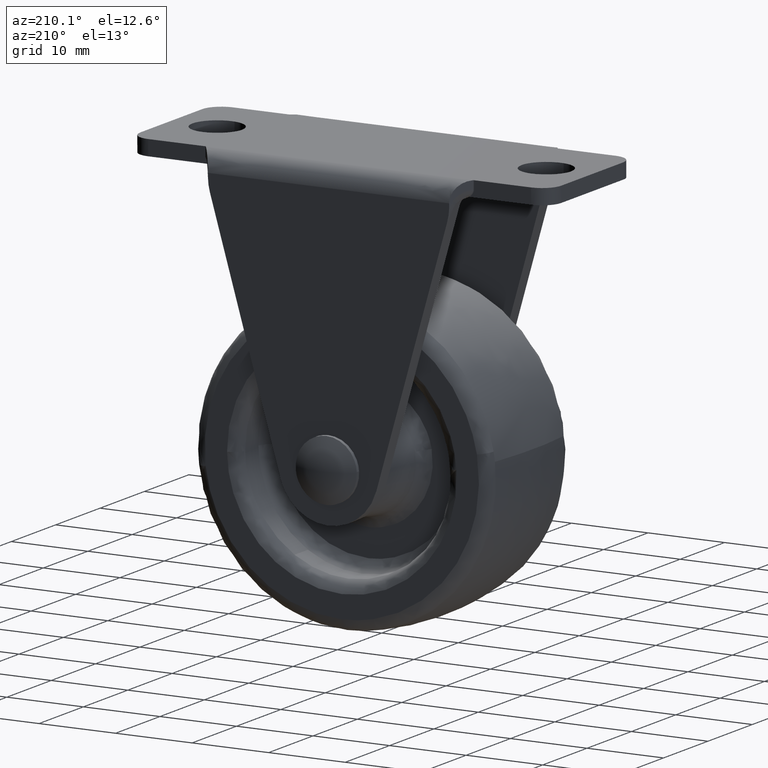
[diagram: clean part render]
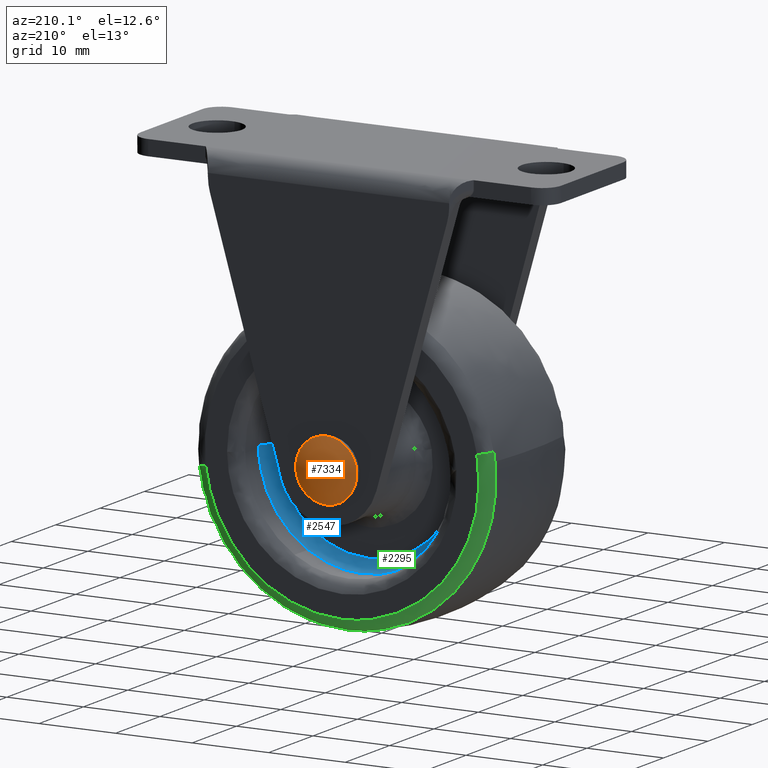
[diagram: same view with three faces highlighted in distinct colors, each labeled with its STEP entity id]
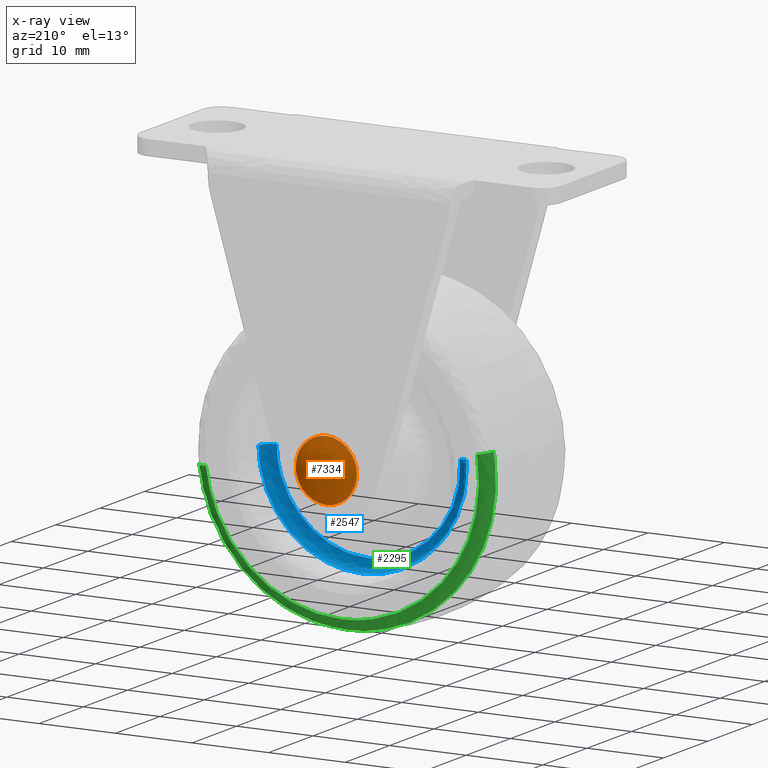
[diagram: x-ray of the same camera — body ghosted, the three highlighted faces saturated]
A machine part, auxiliary view with three faces highlighted in distinct colors.
The next image is the same camera in x-ray (body ghosted, the three faces saturated) — at least one of them is partly hidden behind the body in this view.
Their STEP definitions:

[orange] entity #7334 — the highlighted face is a freeform B-spline surface patch.
#7123=CARTESIAN_POINT('',(3.972038111704775,12.499999995521700,-35.472136939399327));
#7124=VERTEX_POINT('',#7123);
#7130=CARTESIAN_POINT('',(0.0,12.499999995521700,-30.999999991603168));
#7131=VERTEX_POINT('',#7130);
#7132=CARTESIAN_POINT('',(3.972038111704776,12.499999995521700,-35.472136939399334));
#7133=CARTESIAN_POINT('',(4.000000008396834,12.499999995521701,-35.236896479134217));
#7134=CARTESIAN_POINT('',(4.000000008396835,12.499999995521700,-35.0));
#7135=CARTESIAN_POINT('',(4.000000008396834,12.499999995521701,-30.999999991603158));
#7136=CARTESIAN_POINT('',(0.0,12.499999995521700,-30.999999991603168));
#7144=(BOUNDED_CURVE()B_SPLINE_CURVE(2,(#7132,#7133,#7134,#7135,#7136),.UNSPECIFIED.,.F.,.U.)B_SPLINE_CURVE_WITH_KNOTS((3,2,3),(0.229562473513178,0.250000000000000,0.500000000000000),.UNSPECIFIED.)CURVE()GEOMETRIC_REPRESENTATION_ITEM()RATIONAL_B_SPLINE_CURVE((0.956026754183052,0.976055948330758,1.0,0.707106781186548,1.0))REPRESENTATION_ITEM(''));
#7145=EDGE_CURVE('',#7124,#7131,#7144,.T.);
#7147=CARTESIAN_POINT('',(-3.992539199969162,12.499999995521700,-34.755805841408481));
#7148=VERTEX_POINT('',#7147);
#7149=CARTESIAN_POINT('',(0.0,12.499999995521700,-30.999999991603168));
#7150=CARTESIAN_POINT('',(-3.762824275394021,12.499999995521703,-30.999999991603165));
#7151=CARTESIAN_POINT('',(-3.992539199969162,12.499999995521700,-34.755805841408481));
#7159=(BOUNDED_CURVE()B_SPLINE_CURVE(2,(#7149,#7150,#7151),.UNSPECIFIED.,.F.,.U.)B_SPLINE_CURVE_WITH_KNOTS((3,3),(0.500000000000000,0.739332962236123),.UNSPECIFIED.)CURVE()GEOMETRIC_REPRESENTATION_ITEM()RATIONAL_B_SPLINE_CURVE((1.0,0.719603993290014,0.976072041660674))REPRESENTATION_ITEM(''));
#7160=EDGE_CURVE('',#7131,#7148,#7159,.T.);
#7234=CARTESIAN_POINT('',(0.0,12.499999995521700,-39.000000008396839));
#7235=VERTEX_POINT('',#7234);
#7236=CARTESIAN_POINT('',(-3.992539199969162,12.499999995521698,-34.755805841408488));
#7237=CARTESIAN_POINT('',(-4.000000008396836,12.499999995521701,-34.877788946481274));
#7238=CARTESIAN_POINT('',(-4.000000008396835,12.499999995521700,-35.0));
#7239=CARTESIAN_POINT('',(-4.000000008396834,12.499999995521701,-39.000000008396846));
#7240=CARTESIAN_POINT('',(0.0,12.499999995521700,-39.000000008396839));
#7248=(BOUNDED_CURVE()B_SPLINE_CURVE(2,(#7236,#7237,#7238,#7239,#7240),.UNSPECIFIED.,.F.,.U.)B_SPLINE_CURVE_WITH_KNOTS((3,2,3),(0.739332962236123,0.750000000000000,1.0),.UNSPECIFIED.)CURVE()GEOMETRIC_REPRESENTATION_ITEM()RATIONAL_B_SPLINE_CURVE((0.976072041660673,0.987502787896533,1.0,0.707106781186548,1.0))REPRESENTATION_ITEM(''));
#7249=EDGE_CURVE('',#7148,#7235,#7248,.T.);
#7251=CARTESIAN_POINT('',(0.0,12.499999995521700,-39.000000008396839));
#7252=CARTESIAN_POINT('',(3.552698111211124,12.499999995521701,-39.000000008396839));
#7253=CARTESIAN_POINT('',(3.972038111704775,12.499999995521698,-35.472136939399341));
#7261=(BOUNDED_CURVE()B_SPLINE_CURVE(2,(#7251,#7252,#7253),.UNSPECIFIED.,.F.,.U.)B_SPLINE_CURVE_WITH_KNOTS((3,3),(0.0,0.229562473513178),.UNSPECIFIED.)CURVE()GEOMETRIC_REPRESENTATION_ITEM()RATIONAL_B_SPLINE_CURVE((1.0,0.731050832855789,0.956026754183053))REPRESENTATION_ITEM(''));
#7262=EDGE_CURVE('',#7235,#7124,#7261,.T.);
#7304=CARTESIAN_POINT('',(-4.060453221722129,11.266953755104980,-30.939456900169390));
#7305=CARTESIAN_POINT('',(-2.172937257303670,12.304966706518959,-30.654029289485536));
#7306=CARTESIAN_POINT('',(2.172949429898298,12.304966706518959,-30.654029289485536));
#7307=CARTESIAN_POINT('',(4.060472980197424,11.266942889173379,-30.939459888028964));
#7308=CARTESIAN_POINT('',(-4.345888038590006,12.305015890197657,-32.827007882601769));
#7309=CARTESIAN_POINT('',(-2.337235760131406,13.500000000000000,-32.662712505168628));
#7310=CARTESIAN_POINT('',(2.337248853111133,13.500000000000000,-32.662712505168628));
#7311=CARTESIAN_POINT('',(4.345908961216626,12.305003442902473,-32.827009593949242));
#7312=CARTESIAN_POINT('',(-4.345888038590006,12.305015890197657,-37.172992037315133));
#7313=CARTESIAN_POINT('',(-2.337235760131406,13.500000000000000,-37.337287408693342));
#7314=CARTESIAN_POINT('',(2.337248853111133,13.500000000000000,-37.337287408693342));
#7315=CARTESIAN_POINT('',(4.345908961216626,12.305003442902473,-37.172990325967703));
#7316=CARTESIAN_POINT('',(-4.060453241379059,11.266953826592809,-39.060542969841322));
#7317=CARTESIAN_POINT('',(-2.172937268562442,12.304966788410191,-39.345970572866754));
#7318=CARTESIAN_POINT('',(2.172949441157133,12.304966788410191,-39.345970572866754));
#7319=CARTESIAN_POINT('',(4.060472999854436,11.266942960661101,-39.060539981981890));
#7327=(BOUNDED_SURFACE()B_SPLINE_SURFACE(2,2,((#7304,#7308,#7312,#7316),(#7305,#7309,#7313,#7317),(#7306,#7310,#7314,#7318),(#7307,#7311,#7315,#7319)),.UNSPECIFIED.,.F.,.F.,.U.)B_SPLINE_SURFACE_WITH_KNOTS((3,1,3),(3,1,3),(0.0,4.504191519475756,9.008408271018071),(0.0,4.504291219728851,9.008582273457266),.UNSPECIFIED.)GEOMETRIC_REPRESENTATION_ITEM()RATIONAL_B_SPLINE_SURFACE(((1.151219153383144,1.075607903092554,1.075607903092554,1.151219147810014),(1.075611250290590,1.0,1.0,1.075611244717460),(1.075611250290590,1.0,1.0,1.075611244717460),(1.151220000482552,1.075608750191963,1.075608750191963,1.151219994909422)))REPRESENTATION_ITEM('')SURFACE());
#7328=ORIENTED_EDGE('',*,*,#7249,.F.);
#7329=ORIENTED_EDGE('',*,*,#7160,.F.);
#7330=ORIENTED_EDGE('',*,*,#7145,.F.);
#7331=ORIENTED_EDGE('',*,*,#7262,.F.);
#7332=EDGE_LOOP('',(#7328,#7329,#7330,#7331));
#7333=FACE_OUTER_BOUND('',#7332,.T.);
#7334=ADVANCED_FACE('',(#7333),#7327,.T.);

[blue] entity #2547 — the highlighted face is a freeform B-spline surface patch.
#581=CARTESIAN_POINT('',(7.043325705368315,4.499999999998531,-46.517011895800991));
#582=VERTEX_POINT('',#581);
#588=CARTESIAN_POINT('',(13.498934096751150,4.499999999990124,-35.169641538454272));
#589=VERTEX_POINT('',#588);
#590=CARTESIAN_POINT('',(7.043325705368316,4.499999999998532,-46.517011895800991));
#591=CARTESIAN_POINT('',(13.405225547462868,4.499999999995649,-42.626338420918927));
#592=CARTESIAN_POINT('',(13.498934096751157,4.499999999990124,-35.169641538454272));
#600=(BOUNDED_CURVE()B_SPLINE_CURVE(2,(#590,#591,#592),.UNSPECIFIED.,.F.,.U.)B_SPLINE_CURVE_WITH_KNOTS((3,3),(0.089144100680157,0.247784295920972),.UNSPECIFIED.)CURVE()GEOMETRIC_REPRESENTATION_ITEM()RATIONAL_B_SPLINE_CURVE((0.865603209903497,0.812290206346157,0.994854295642273))REPRESENTATION_ITEM(''));
#601=EDGE_CURVE('',#582,#589,#600,.T.);
#620=CARTESIAN_POINT('',(-13.467136596845579,4.499999999988322,-34.058601103727838));
#621=VERTEX_POINT('',#620);
#635=CARTESIAN_POINT('',(-10.110903229327260,4.500000000000000,-43.945369522114632));
#636=VERTEX_POINT('',#635);
#637=CARTESIAN_POINT('',(-13.467136596845576,4.499999999988322,-34.058601103727845));
#638=CARTESIAN_POINT('',(-13.499999999999995,4.500000000000000,-34.528726935687693));
#639=CARTESIAN_POINT('',(-13.500000000000000,4.500000000000000,-35.0));
#640=CARTESIAN_POINT('',(-13.499999999999998,4.499999999999999,-40.114691605637006));
#641=CARTESIAN_POINT('',(-10.110903229327331,4.500000000000000,-43.945369522114675));
#649=(BOUNDED_CURVE()B_SPLINE_CURVE(2,(#637,#638,#639,#640,#641),.UNSPECIFIED.,.F.,.U.)B_SPLINE_CURVE_WITH_KNOTS((3,2,3),(0.737833686535040,0.750000000000000,0.865779871198424),.UNSPECIFIED.)CURVE()GEOMETRIC_REPRESENTATION_ITEM()RATIONAL_B_SPLINE_CURVE((0.972879876386867,0.985746277152618,1.0,0.864355443403547,0.854350161139131))REPRESENTATION_ITEM(''));
#650=EDGE_CURVE('',#621,#636,#649,.T.);
#752=CARTESIAN_POINT('',(0.0,4.500000000000000,-48.500000000000000));
#753=VERTEX_POINT('',#752);
#754=CARTESIAN_POINT('',(-10.110903229327331,4.500000000000000,-43.945369522114675));
#755=CARTESIAN_POINT('',(-6.081307481324056,4.500000000000000,-48.500000000000000));
#756=CARTESIAN_POINT('',(0.0,4.500000000000000,-48.500000000000000));
#764=(BOUNDED_CURVE()B_SPLINE_CURVE(2,(#754,#755,#756),.UNSPECIFIED.,.F.,.U.)B_SPLINE_CURVE_WITH_KNOTS((3,3),(0.865779871198424,1.0),.UNSPECIFIED.)CURVE()GEOMETRIC_REPRESENTATION_ITEM()RATIONAL_B_SPLINE_CURVE((0.854350161139131,0.842751337783001,1.0))REPRESENTATION_ITEM(''));
#765=EDGE_CURVE('',#636,#753,#764,.T.);
#767=CARTESIAN_POINT('',(0.0,4.500000000000000,-48.500000000000000));
#768=CARTESIAN_POINT('',(3.800809521876256,4.500000000000000,-48.500000000000000));
#769=CARTESIAN_POINT('',(7.043325705368316,4.499999999998532,-46.517011895800991));
#777=(BOUNDED_CURVE()B_SPLINE_CURVE(2,(#767,#768,#769),.UNSPECIFIED.,.F.,.U.)B_SPLINE_CURVE_WITH_KNOTS((3,3),(0.0,0.089144100680157),.UNSPECIFIED.)CURVE()GEOMETRIC_REPRESENTATION_ITEM()RATIONAL_B_SPLINE_CURVE((1.0,0.895561189654233,0.865603209903497))REPRESENTATION_ITEM(''));
#778=EDGE_CURVE('',#753,#582,#777,.T.);
#2452=CARTESIAN_POINT('',(-13.463514533308766,4.604305701603273,-34.058855045031940));
#2453=CARTESIAN_POINT('',(-13.490449671584843,4.604305701603274,-34.444174674832176));
#2454=CARTESIAN_POINT('',(-13.495303429030796,4.604305701603273,-34.830404088292617));
#2455=CARTESIAN_POINT('',(-13.664899340738179,4.604305701603273,-48.325707517323401));
#2456=CARTESIAN_POINT('',(-0.169595911707388,4.604305701603273,-48.495303429030777));
#2457=CARTESIAN_POINT('',(13.325707517323403,4.604305701603273,-48.664899340738181));
#2458=CARTESIAN_POINT('',(13.495303429030796,4.604305701603273,-35.169595911707383));
#2459=CARTESIAN_POINT('',(-13.583159346971291,2.883693310098220,-34.050491470091082));
#2460=CARTESIAN_POINT('',(-13.610333846937960,2.883693310098219,-34.439235279751188));
#2461=CARTESIAN_POINT('',(-13.615230737765152,2.883693310098220,-34.828896957951279));
#2462=CARTESIAN_POINT('',(-13.786333779813871,2.883693310098218,-48.444127695716432));
#2463=CARTESIAN_POINT('',(-0.171103042048723,2.883693310098220,-48.615230737765152));
#2464=CARTESIAN_POINT('',(13.444127695716427,2.883693310098218,-48.786333779813873));
#2465=CARTESIAN_POINT('',(13.615230737765152,2.883693310098220,-35.171103042048728));
#2466=CARTESIAN_POINT('',(-11.866735544694521,3.003631010283295,-34.170475267642878));
#2467=CARTESIAN_POINT('',(-11.890476163237414,3.003631010283295,-34.510095812910343));
#2468=CARTESIAN_POINT('',(-11.894754262827734,3.003631010283295,-34.850518241079342));
#2469=CARTESIAN_POINT('',(-12.044236021748397,3.003631010283295,-46.745272503907060));
#2470=CARTESIAN_POINT('',(-0.149481758920665,3.003631010283295,-46.894754262827732));
#2471=CARTESIAN_POINT('',(11.745272503907067,3.003631010283295,-47.044236021748382));
#2472=CARTESIAN_POINT('',(11.894754262827734,3.003631010283295,-35.149481758920665));
#2480=(BOUNDED_SURFACE()B_SPLINE_SURFACE(2,2,((#2452,#2459,#2466),(#2453,#2460,#2467),(#2454,#2461,#2468),(#2455,#2462,#2469),(#2456,#2463,#2470),(#2457,#2464,#2471),(#2458,#2465,#2472)),.UNSPECIFIED.,.F.,.F.,.U.)B_SPLINE_SURFACE_WITH_KNOTS((3,2,2,3),(3,3),(0.0,0.894459803212263,23.255976209122721,45.617492615033179),(0.0,2.733561929613819),.UNSPECIFIED.)GEOMETRIC_REPRESENTATION_ITEM()RATIONAL_B_SPLINE_SURFACE(((0.889999310205112,0.584039647420918,0.889999527423222),(0.899812881342152,0.590479556487248,0.899813100955416),(0.910479805606521,0.597479457065813,0.910480027823212),(0.643806444677780,0.422481775710893,0.643806601808710),(0.910479805606521,0.597479457065813,0.910480027823212),(0.643806444677780,0.422481775710893,0.643806601808710),(0.910479805606521,0.597479457065813,0.910480027823212)))REPRESENTATION_ITEM('')SURFACE());
#2481=ORIENTED_EDGE('',*,*,#650,.F.);
#2482=CARTESIAN_POINT('',(-11.970788089491510,3.0,-34.163200980615763));
#2483=VERTEX_POINT('',#2482);
#2484=CARTESIAN_POINT('',(-13.467136596845572,4.499999999988323,-34.058601103727831));
#2485=CARTESIAN_POINT('',(-13.467136596822535,3.000000006862861,-34.058601103733146));
#2486=CARTESIAN_POINT('',(-11.970788089491510,3.000000000000000,-34.163200980615755));
#2494=(BOUNDED_CURVE()B_SPLINE_CURVE(2,(#2484,#2485,#2486),.UNSPECIFIED.,.F.,.U.)B_SPLINE_CURVE_WITH_KNOTS((3,3),(-1.725134643265846,-0.274865361410073),.UNSPECIFIED.)CURVE()GEOMETRIC_REPRESENTATION_ITEM()RATIONAL_B_SPLINE_CURVE((0.863472075367133,0.610566960682239,0.863472073736314))REPRESENTATION_ITEM(''));
#2495=EDGE_CURVE('',#621,#2483,#2494,.T.);
#2496=ORIENTED_EDGE('',*,*,#2495,.T.);
#2497=CARTESIAN_POINT('',(0.0,3.0,-47.0));
#2498=VERTEX_POINT('',#2497);
#2499=CARTESIAN_POINT('',(-11.970788089491510,3.0,-34.163200980615755));
#2500=CARTESIAN_POINT('',(-11.999999999999998,2.999999999999999,-34.581090609262922));
#2501=CARTESIAN_POINT('',(-12.0,3.0,-35.0));
#2502=CARTESIAN_POINT('',(-12.0,3.0,-47.000000000000007));
#2503=CARTESIAN_POINT('',(0.0,3.0,-47.0));
#2511=(BOUNDED_CURVE()B_SPLINE_CURVE(2,(#2499,#2500,#2501,#2502,#2503),.UNSPECIFIED.,.F.,.U.)B_SPLINE_CURVE_WITH_KNOTS((3,2,3),(0.737833686528248,0.750000000000000,1.0),.UNSPECIFIED.)CURVE()GEOMETRIC_REPRESENTATION_ITEM()RATIONAL_B_SPLINE_CURVE((0.972879876372502,0.985746277144661,1.0,0.707106781186548,1.0))REPRESENTATION_ITEM(''));
#2512=EDGE_CURVE('',#2483,#2498,#2511,.T.);
#2513=ORIENTED_EDGE('',*,*,#2512,.T.);
#2514=CARTESIAN_POINT('',(11.999052533598590,3.0,-35.150792478883503));
#2515=VERTEX_POINT('',#2514);
#2516=CARTESIAN_POINT('',(0.0,3.0,-47.0));
#2517=CARTESIAN_POINT('',(11.850143158406569,3.000000000000001,-47.000000000000014));
#2518=CARTESIAN_POINT('',(11.999052533598595,3.0,-35.150792478883496));
#2526=(BOUNDED_CURVE()B_SPLINE_CURVE(2,(#2516,#2517,#2518),.UNSPECIFIED.,.F.,.U.)B_SPLINE_CURVE_WITH_KNOTS((3,3),(0.0,0.247784295914587),.UNSPECIFIED.)CURVE()GEOMETRIC_REPRESENTATION_ITEM()RATIONAL_B_SPLINE_CURVE((1.0,0.709702639992606,0.994854295627577))REPRESENTATION_ITEM(''));
#2527=EDGE_CURVE('',#2498,#2515,#2526,.T.);
#2528=ORIENTED_EDGE('',*,*,#2527,.T.);
#2529=CARTESIAN_POINT('',(13.498934096751157,4.499999999990125,-35.169641538454265));
#2530=CARTESIAN_POINT('',(13.498934096731762,3.000000006312224,-35.169641538425005));
#2531=CARTESIAN_POINT('',(11.999052533598594,3.0,-35.150792478883488));
#2539=(BOUNDED_CURVE()B_SPLINE_CURVE(2,(#2529,#2530,#2531),.UNSPECIFIED.,.F.,.U.)B_SPLINE_CURVE_WITH_KNOTS((3,3),(-1.725134643268311,-0.274865361033622),.UNSPECIFIED.)CURVE()GEOMETRIC_REPRESENTATION_ITEM()RATIONAL_B_SPLINE_CURVE((0.883342149648242,0.624617224899854,0.883342148113330))REPRESENTATION_ITEM(''));
#2540=EDGE_CURVE('',#589,#2515,#2539,.T.);
#2541=ORIENTED_EDGE('',*,*,#2540,.F.);
#2542=ORIENTED_EDGE('',*,*,#601,.F.);
#2543=ORIENTED_EDGE('',*,*,#778,.F.);
#2544=ORIENTED_EDGE('',*,*,#765,.F.);
#2545=EDGE_LOOP('',(#2481,#2496,#2513,#2528,#2541,#2542,#2543,#2544));
#2546=FACE_OUTER_BOUND('',#2545,.T.);
#2547=ADVANCED_FACE('',(#2546),#2480,.F.);

[green] entity #2295 — the highlighted face is a freeform B-spline surface patch.
#2090=CARTESIAN_POINT('',(19.262038416458431,7.731957079813169,-37.297313797547609));
#2091=VERTEX_POINT('',#2090);
#2109=CARTESIAN_POINT('',(17.790510479022711,9.000000000000103,-37.121809971889121));
#2110=VERTEX_POINT('',#2109);
#2111=CARTESIAN_POINT('',(17.790510479022711,9.000000000000103,-37.121809971889128));
#2112=CARTESIAN_POINT('',(19.064960129321193,9.000000168779657,-37.273808981563676));
#2113=CARTESIAN_POINT('',(19.262038416458431,7.731957079813169,-37.297313797547623));
#2121=(BOUNDED_CURVE()B_SPLINE_CURVE(2,(#2111,#2112,#2113),.UNSPECIFIED.,.F.,.U.)B_SPLINE_CURVE_WITH_KNOTS((3,3),(-1.701371703823084,-0.289833517995037),.UNSPECIFIED.)CURVE()GEOMETRIC_REPRESENTATION_ITEM()RATIONAL_B_SPLINE_CURVE((0.870689863643663,0.662554073880079,0.873299760924525))REPRESENTATION_ITEM(''));
#2122=EDGE_CURVE('',#2110,#2091,#2121,.T.);
#2141=CARTESIAN_POINT('',(-17.640039449021572,9.000000000000103,-31.864182911629818));
#2142=VERTEX_POINT('',#2141);
#2156=CARTESIAN_POINT('',(-19.099121574165370,7.731956179345096,-31.604806242882500));
#2157=VERTEX_POINT('',#2156);
#2158=CARTESIAN_POINT('',(-17.640039449021572,9.000000000000105,-31.864182911629818));
#2159=CARTESIAN_POINT('',(-18.903710681020147,9.000000172899979,-31.639543853721023));
#2160=CARTESIAN_POINT('',(-19.099121574165370,7.731956179345096,-31.604806242882496));
#2168=(BOUNDED_CURVE()B_SPLINE_CURVE(2,(#2158,#2159,#2160),.UNSPECIFIED.,.F.,.U.)B_SPLINE_CURVE_WITH_KNOTS((3,3),(-1.701371707302739,-0.289832841735081),.UNSPECIFIED.)CURVE()GEOMETRIC_REPRESENTATION_ITEM()RATIONAL_B_SPLINE_CURVE((0.890726033504451,0.677800554334248,0.893396194834229))REPRESENTATION_ITEM(''));
#2169=EDGE_CURVE('',#2142,#2157,#2168,.T.);
#2187=CARTESIAN_POINT('',(-17.545206013549823,8.996904265378262,-31.881041168009308));
#2188=CARTESIAN_POINT('',(-20.664164845540526,8.996904265378262,-49.426247181559127));
#2189=CARTESIAN_POINT('',(-3.118958831990699,8.996904265378262,-52.545206013549816));
#2190=CARTESIAN_POINT('',(14.426247181559122,8.996904265378262,-55.664164845540540));
#2191=CARTESIAN_POINT('',(17.545206013549823,8.996904265378262,-38.118958831990703));
#2192=CARTESIAN_POINT('',(17.634469189188810,8.996904265378261,-37.616823058364552));
#2193=CARTESIAN_POINT('',(17.694867987480634,8.996904265378262,-37.110404027476903));
#2194=CARTESIAN_POINT('',(-18.979818720572617,9.090663670853008,-31.626014355009829));
#2195=CARTESIAN_POINT('',(-22.353804365562794,9.090663670853008,-50.605833075582424));
#2196=CARTESIAN_POINT('',(-3.373985644990175,9.090663670853008,-53.979818720572624));
#2197=CARTESIAN_POINT('',(15.605833075582442,9.090663670853008,-57.353804365562780));
#2198=CARTESIAN_POINT('',(18.979818720572617,9.090663670853008,-38.373985644990171));
#2199=CARTESIAN_POINT('',(19.076380646989566,9.090663670853006,-37.830791911660491));
#2200=CARTESIAN_POINT('',(19.141718052639522,9.090663670853008,-37.282964693474909));
#2201=CARTESIAN_POINT('',(-19.110748245253284,7.636614546211078,-31.602739404743879));
#2202=CARTESIAN_POINT('',(-22.508008840509408,7.636614546211080,-50.713487649997170));
#2203=CARTESIAN_POINT('',(-3.397260595256118,7.636614546211078,-54.110748245253291));
#2204=CARTESIAN_POINT('',(15.713487649997159,7.636614546211080,-57.508008840509412));
#2205=CARTESIAN_POINT('',(19.110748245253284,7.636614546211078,-38.397260595256128));
#2206=CARTESIAN_POINT('',(19.207976290104458,7.636614546211078,-37.850319718797117));
#2207=CARTESIAN_POINT('',(19.273764416364095,7.636614546211078,-37.298713394059469));
#2215=(BOUNDED_SURFACE()B_SPLINE_SURFACE(2,2,((#2187,#2194,#2201),(#2188,#2195,#2202),(#2189,#2196,#2203),(#2190,#2197,#2204),(#2191,#2198,#2205),(#2192,#2199,#2206),(#2193,#2200,#2207)),.UNSPECIFIED.,.F.,.F.,.U.)B_SPLINE_SURFACE_WITH_KNOTS((3,2,2,3),(3,3),(0.0,32.160137566091883,64.320275132183767,65.606679408015552),(0.0,2.438058657156041),.UNSPECIFIED.)GEOMETRIC_REPRESENTATION_ITEM()RATIONAL_B_SPLINE_SURFACE(((0.913066856271475,0.655326509854610,0.916003457490624),(0.645635765746243,0.463385819009508,0.647712256381944),(0.913066856271475,0.655326509854610,0.916003457490624),(0.645635765746243,0.463385819009508,0.647712256381944),(0.913066856271475,0.655326509854610,0.916003457490624),(0.902369622852153,0.647648889542763,0.905271819680774),(0.892528167290241,0.640585478270107,0.895398712076953)))REPRESENTATION_ITEM('')SURFACE());
#2216=CARTESIAN_POINT('',(0.0,7.731958762886690,-54.398550724581412));
#2217=VERTEX_POINT('',#2216);
#2218=CARTESIAN_POINT('',(0.0,7.731958762886690,-54.398550724581412));
#2219=CARTESIAN_POINT('',(17.222435261358449,7.731958762886691,-54.398550724581405));
#2220=CARTESIAN_POINT('',(19.262038416458431,7.731957079813169,-37.297313797547609));
#2228=(BOUNDED_CURVE()B_SPLINE_CURVE(2,(#2218,#2219,#2220),.UNSPECIFIED.,.F.,.U.)B_SPLINE_CURVE_WITH_KNOTS((3,3),(0.0,0.229495614119424),.UNSPECIFIED.)CURVE()GEOMETRIC_REPRESENTATION_ITEM()RATIONAL_B_SPLINE_CURVE((1.0,0.731129163507967,0.955895748932274))REPRESENTATION_ITEM(''));
#2229=EDGE_CURVE('',#2217,#2091,#2228,.T.);
#2230=ORIENTED_EDGE('',*,*,#2229,.F.);
#2231=CARTESIAN_POINT('',(-19.268806949428988,7.731956223986990,-32.760164207470467));
#2232=VERTEX_POINT('',#2231);
#2233=CARTESIAN_POINT('',(-19.268806949428985,7.731956223986990,-32.760164207470474));
#2234=CARTESIAN_POINT('',(-19.398551109135923,7.731956289468273,-33.876324317674872));
#2235=CARTESIAN_POINT('',(-19.398551097703258,7.731956363002110,-34.999999956627747));
#2236=CARTESIAN_POINT('',(-19.398550900335643,7.731957632451960,-54.398550704151468));
#2237=CARTESIAN_POINT('',(0.0,7.731958762886690,-54.398550724581412));
#2245=(BOUNDED_CURVE()B_SPLINE_CURVE(2,(#2233,#2234,#2235,#2236,#2237),.UNSPECIFIED.,.F.,.U.)B_SPLINE_CURVE_WITH_KNOTS((3,2,3),(0.730000026009820,0.750000000000000,1.0),.UNSPECIFIED.)CURVE()GEOMETRIC_REPRESENTATION_ITEM()RATIONAL_B_SPLINE_CURVE((0.956886169384298,0.976568572967324,1.0,0.707106781186548,1.0))REPRESENTATION_ITEM(''));
#2246=EDGE_CURVE('',#2232,#2217,#2245,.T.);
#2247=ORIENTED_EDGE('',*,*,#2246,.F.);
#2248=CARTESIAN_POINT('',(-19.099121574165370,7.731956179345096,-31.604806242882503));
#2249=CARTESIAN_POINT('',(-19.201359671668456,7.731956201476350,-32.179930392398745));
#2250=CARTESIAN_POINT('',(-19.268806949428985,7.731956223986990,-32.760164207470474));
#2258=(BOUNDED_CURVE()B_SPLINE_CURVE(2,(#2248,#2249,#2250),.UNSPECIFIED.,.F.,.U.)B_SPLINE_CURVE_WITH_KNOTS((3,3),(0.719918253182626,0.730000026009820),.UNSPECIFIED.)CURVE()GEOMETRIC_REPRESENTATION_ITEM()RATIONAL_B_SPLINE_CURVE((0.937995440841392,0.946964480400370,0.956886169384298))REPRESENTATION_ITEM(''));
#2259=EDGE_CURVE('',#2157,#2232,#2258,.T.);
#2260=ORIENTED_EDGE('',*,*,#2259,.F.);
#2261=ORIENTED_EDGE('',*,*,#2169,.F.);
#2262=CARTESIAN_POINT('',(0.0,9.000000000000108,-52.916594000000003));
#2263=VERTEX_POINT('',#2262);
#2264=CARTESIAN_POINT('',(-17.640039449021572,9.000000000000103,-31.864182911629825));
#2265=CARTESIAN_POINT('',(-17.916594000000003,9.000000000000108,-33.419896481183933));
#2266=CARTESIAN_POINT('',(-17.916594000000000,9.000000000000108,-35.0));
#2267=CARTESIAN_POINT('',(-17.916594000000000,9.000000000000108,-52.916593999999996));
#2268=CARTESIAN_POINT('',(0.0,9.000000000000108,-52.916594000000003));
#2276=(BOUNDED_CURVE()B_SPLINE_CURVE(2,(#2264,#2265,#2266,#2267,#2268),.UNSPECIFIED.,.F.,.U.)B_SPLINE_CURVE_WITH_KNOTS((3,2,3),(0.719918253210218,0.750000000000000,1.0),.UNSPECIFIED.)CURVE()GEOMETRIC_REPRESENTATION_ITEM()RATIONAL_B_SPLINE_CURVE((0.937995440890485,0.964757041420838,1.0,0.707106781186547,1.0))REPRESENTATION_ITEM(''));
#2277=EDGE_CURVE('',#2142,#2263,#2276,.T.);
#2278=ORIENTED_EDGE('',*,*,#2277,.T.);
#2279=CARTESIAN_POINT('',(0.0,9.000000000000108,-52.916594000000003));
#2280=CARTESIAN_POINT('',(15.906723594651824,9.000000000000108,-52.916593999999996));
#2281=CARTESIAN_POINT('',(17.790510479022707,9.000000000000103,-37.121809971889121));
#2289=(BOUNDED_CURVE()B_SPLINE_CURVE(2,(#2279,#2280,#2281),.UNSPECIFIED.,.F.,.U.)B_SPLINE_CURVE_WITH_KNOTS((3,3),(0.0,0.229495616427042),.UNSPECIFIED.)CURVE()GEOMETRIC_REPRESENTATION_ITEM()RATIONAL_B_SPLINE_CURVE((1.0,0.731129160804425,0.955895753452406))REPRESENTATION_ITEM(''));
#2290=EDGE_CURVE('',#2263,#2110,#2289,.T.);
#2291=ORIENTED_EDGE('',*,*,#2290,.T.);
#2292=ORIENTED_EDGE('',*,*,#2122,.T.);
#2293=EDGE_LOOP('',(#2230,#2247,#2260,#2261,#2278,#2291,#2292));
#2294=FACE_OUTER_BOUND('',#2293,.T.);
#2295=ADVANCED_FACE('',(#2294),#2215,.T.);